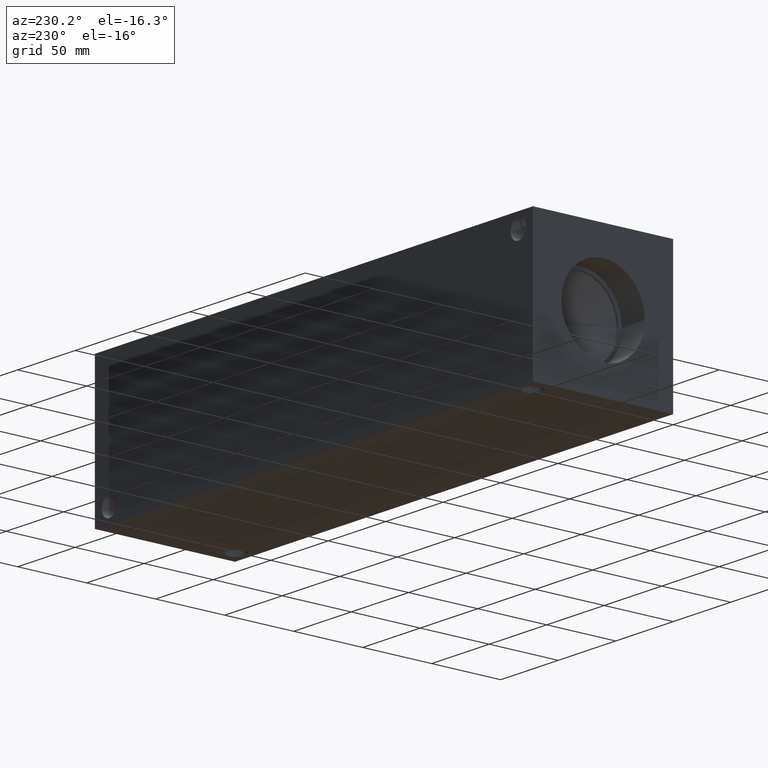
[diagram: clean part render]
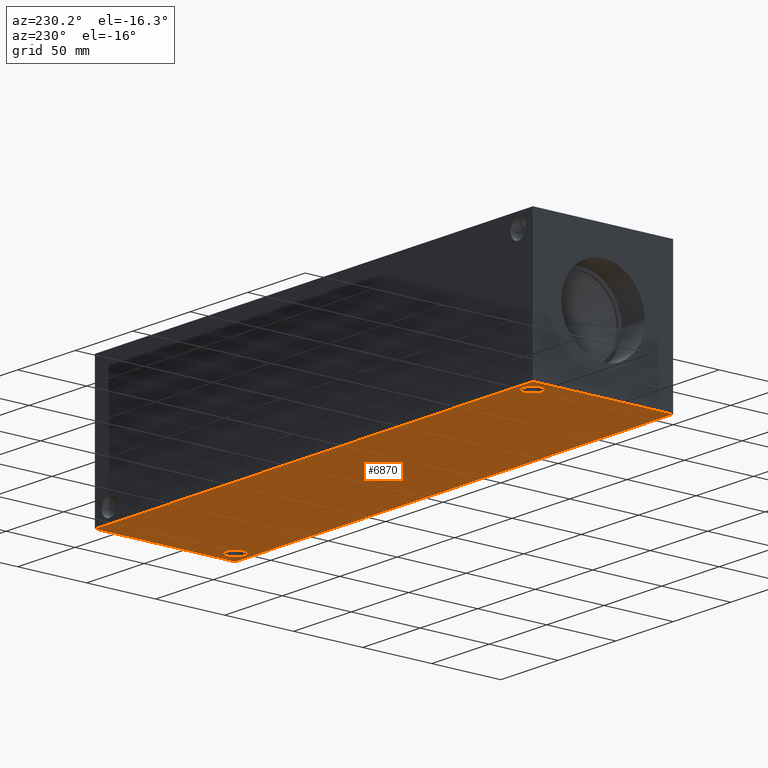
[diagram: same view with one face highlighted and labeled with its STEP entity id]
A machine part, auxiliary view. The second image highlights one B-rep face of the part: STEP entity #6870.
In plain terms, the highlighted planar face has unit normal (0, 0, 1).
Its self-contained STEP definition (entity closure, byte-faithful):
#61=CIRCLE('',#7133,6.7437);
#62=CIRCLE('',#7135,6.7437);
#136=FACE_BOUND('',#1100,.T.);
#137=FACE_BOUND('',#1101,.T.);
#365=PLANE('',#7190);
#710=FACE_OUTER_BOUND('',#1099,.T.);
#1099=EDGE_LOOP('',(#6123,#6124,#6125,#6126));
#1100=EDGE_LOOP('',(#6127));
#1101=EDGE_LOOP('',(#6128));
#1790=LINE('',#11623,#2486);
#1793=LINE('',#11628,#2489);
#1795=LINE('',#11632,#2491);
#1797=LINE('',#11635,#2493);
#2486=VECTOR('',#8483,10.);
#2489=VECTOR('',#8488,10.);
#2491=VECTOR('',#8492,10.);
#2493=VECTOR('',#8496,10.);
#3272=VERTEX_POINT('',#11515);
#3273=VERTEX_POINT('',#11519);
#3308=VERTEX_POINT('',#11621);
#3309=VERTEX_POINT('',#11622);
#3310=VERTEX_POINT('',#11627);
#3311=VERTEX_POINT('',#11631);
#4196=EDGE_CURVE('',#3272,#3272,#61,.T.);
#4198=EDGE_CURVE('',#3273,#3273,#62,.T.);
#4243=EDGE_CURVE('',#3308,#3309,#1790,.T.);
#4246=EDGE_CURVE('',#3310,#3308,#1793,.T.);
#4248=EDGE_CURVE('',#3311,#3310,#1795,.T.);
#4250=EDGE_CURVE('',#3309,#3311,#1797,.T.);
#6123=ORIENTED_EDGE('',*,*,#4250,.F.);
#6124=ORIENTED_EDGE('',*,*,#4243,.F.);
#6125=ORIENTED_EDGE('',*,*,#4246,.F.);
#6126=ORIENTED_EDGE('',*,*,#4248,.F.);
#6127=ORIENTED_EDGE('',*,*,#4196,.T.);
#6128=ORIENTED_EDGE('',*,*,#4198,.T.);
#6870=ADVANCED_FACE('',(#710,#136,#137),#365,.F.);
#7133=AXIS2_PLACEMENT_3D('',#11517,#8361,#8362);
#7135=AXIS2_PLACEMENT_3D('',#11521,#8366,#8367);
#7190=AXIS2_PLACEMENT_3D('',#11637,#8499,#8500);
#8361=DIRECTION('center_axis',(0.,0.,1.));
#8362=DIRECTION('ref_axis',(1.,0.,0.));
#8366=DIRECTION('center_axis',(0.,0.,1.));
#8367=DIRECTION('ref_axis',(1.,0.,0.));
#8483=DIRECTION('',(0.,-1.,0.));
#8488=DIRECTION('',(-1.,0.,0.));
#8492=DIRECTION('',(0.,1.,0.));
#8496=DIRECTION('',(1.,0.,0.));
#8499=DIRECTION('center_axis',(0.,0.,1.));
#8500=DIRECTION('ref_axis',(1.,0.,0.));
#11515=CARTESIAN_POINT('',(361.5563,10.3124,0.));
#11517=CARTESIAN_POINT('Origin',(368.3,10.3124,0.));
#11519=CARTESIAN_POINT('',(5.9563,91.2876,0.));
#11521=CARTESIAN_POINT('Origin',(12.7,91.2876,0.));
#11621=CARTESIAN_POINT('',(0.,101.6,0.));
#11622=CARTESIAN_POINT('',(0.,0.,0.));
#11623=CARTESIAN_POINT('',(0.,101.6,0.));
#11627=CARTESIAN_POINT('',(381.,101.6,0.));
#11628=CARTESIAN_POINT('',(381.,101.6,0.));
#11631=CARTESIAN_POINT('',(381.,0.,0.));
#11632=CARTESIAN_POINT('',(381.,0.,0.));
#11635=CARTESIAN_POINT('',(0.,0.,0.));
#11637=CARTESIAN_POINT('Origin',(190.5,50.8,0.));